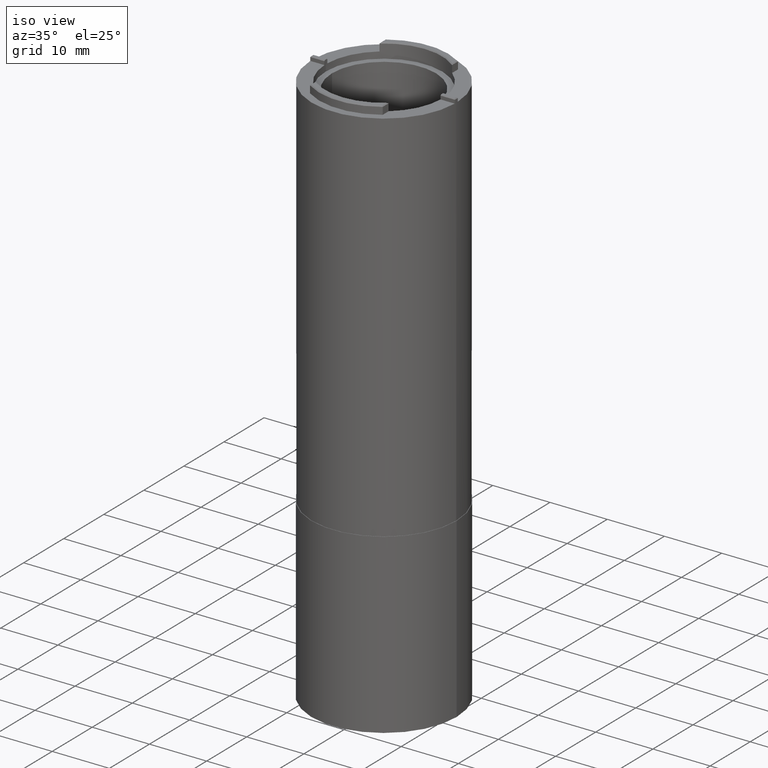
[diagram: clean part render]
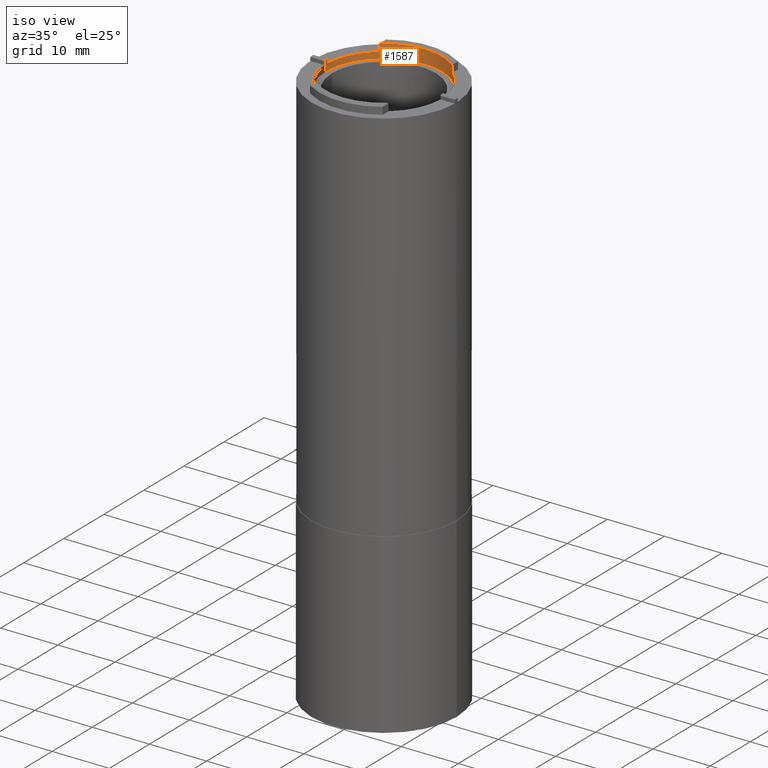
[diagram: same view with one face highlighted and labeled with its STEP entity id]
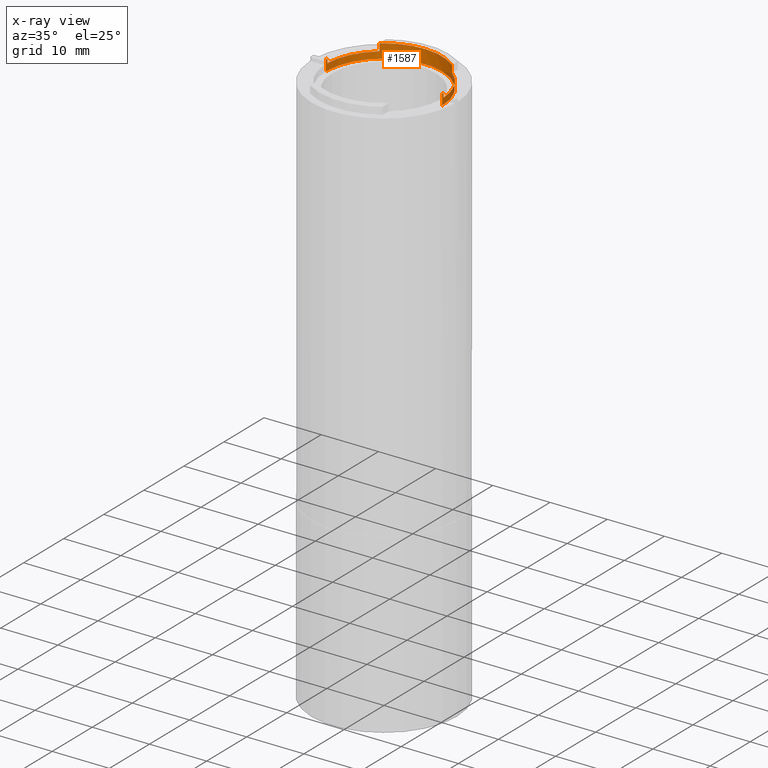
[diagram: x-ray of the same camera — body ghosted, the highlighted face saturated]
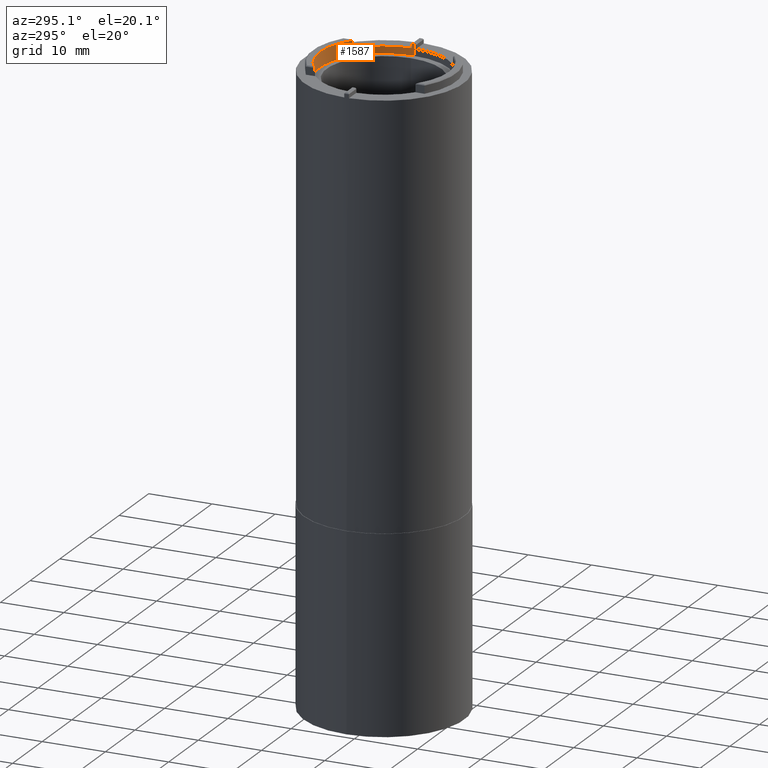
[diagram: same view with one face highlighted and labeled with its STEP entity id]
A machine part, iso view. The second image highlights one B-rep face of the part: STEP entity #1587.
The next image is the same camera in x-ray: the body ghosted, the highlighted face saturated — about 0% of this face is hidden behind the body in this view.
A second angle (auxiliary view) of the same face is appended — the face is thin or edge-on in the first view.
In plain terms, the highlighted cylindrical surface (partial cylindrical patch) has radius 10.16 mm, axis along (-0, -0, 1).
Its self-contained STEP definition (entity closure, byte-faithful):
#35 = EDGE_CURVE ( 'NONE', #1388, #1761, #1072, .T. ) ;
#71 = FACE_OUTER_BOUND ( 'NONE', #1411, .T. ) ;
#78 = DIRECTION ( 'NONE',  ( 1.000000000000000000, 0.000000000000000000, 0.000000000000000000 ) ) ;
#83 = CARTESIAN_POINT ( 'NONE',  ( 0.000000000000000000, 0.000000000000000000, 98.27999999999998693 ) ) ;
#107 = CARTESIAN_POINT ( 'NONE',  ( -10.16000000000000014, 1.244241147933710864E-15, 95.89000000000000057 ) ) ;
#133 = DIRECTION ( 'NONE',  ( 0.000000000000000000, 0.000000000000000000, 1.000000000000000000 ) ) ;
#151 = AXIS2_PLACEMENT_3D ( 'NONE', #1685, #1831, #1662 ) ;
#170 = DIRECTION ( 'NONE',  ( -0.000000000000000000, -0.000000000000000000, 1.000000000000000000 ) ) ;
#186 = ORIENTED_EDGE ( 'NONE', *, *, #1321, .T. ) ;
#190 = CARTESIAN_POINT ( 'NONE',  ( 0.000000000000000000, 0.000000000000000000, 95.89000000000000057 ) ) ;
#201 = EDGE_CURVE ( 'NONE', #332, #306, #861, .T. ) ;
#227 = DIRECTION ( 'NONE',  ( 0.000000000000000000, 0.000000000000000000, 1.000000000000000000 ) ) ;
#265 = VECTOR ( 'NONE', #1609, 1000.000000000000000 ) ;
#273 = CARTESIAN_POINT ( 'NONE',  ( -10.15508222736988486, 0.3200111808489145004, 97.68998881915108257 ) ) ;
#286 = CARTESIAN_POINT ( 'NONE',  ( 10.15508222736988486, 0.3200111808489202181, 97.68998881915108257 ) ) ;
#303 = CARTESIAN_POINT ( 'NONE',  ( 0.000000000000000000, 0.000000000000000000, 97.79000000000000625 ) ) ;
#306 = VERTEX_POINT ( 'NONE', #1478 ) ;
#316 = AXIS2_PLACEMENT_3D ( 'NONE', #369, #1259, #524 ) ;
#327 = AXIS2_PLACEMENT_3D ( 'NONE', #1055, #1788, #769 ) ;
#332 = VERTEX_POINT ( 'NONE', #1777 ) ;
#342 = CIRCLE ( 'NONE', #327, 10.16000000000000014 ) ;
#369 = CARTESIAN_POINT ( 'NONE',  ( 0.000000000000000000, 0.000000000000000000, 97.79000000000000625 ) ) ;
#378 = DIRECTION ( 'NONE',  ( -0.000000000000000000, -0.000000000000000000, 1.000000000000000000 ) ) ;
#426 = DIRECTION ( 'NONE',  ( 0.000000000000000000, 0.000000000000000000, 1.000000000000000000 ) ) ;
#434 = CARTESIAN_POINT ( 'NONE',  ( -6.349999999999996092, 7.931147457965970204, 97.03000000000000114 ) ) ;
#446 = VERTEX_POINT ( 'NONE', #1248 ) ;
#449 = ORIENTED_EDGE ( 'NONE', *, *, #1664, .F. ) ;
#450 = DIRECTION ( 'NONE',  ( 1.000000000000000000, 0.000000000000000000, 0.000000000000000000 ) ) ;
#452 = CARTESIAN_POINT ( 'NONE',  ( -10.16000000000000014, 1.244241147933710864E-15, 95.89000000000000057 ) ) ;
#519 = CARTESIAN_POINT ( 'NONE',  ( 10.16000000000000014, 0.000000000000000000, 95.89000000000000057 ) ) ;
#524 = DIRECTION ( 'NONE',  ( -1.000000000000000000, 0.000000000000000000, 0.000000000000000000 ) ) ;
#578 = CARTESIAN_POINT ( 'NONE',  ( 10.15761783096804649, 0.2200000000000095768, 97.79000000000000625 ) ) ;
#588 = CARTESIAN_POINT ( 'NONE',  ( 0.000000000000000000, 0.000000000000000000, 97.03000000000000114 ) ) ;
#589 = ORIENTED_EDGE ( 'NONE', *, *, #1688, .T. ) ;
#615 = LINE ( 'NONE', #1059, #1283 ) ;
#629 = ORIENTED_EDGE ( 'NONE', *, *, #779, .T. ) ;
#644 = CARTESIAN_POINT ( 'NONE',  ( 10.15326056003685906, 0.3699999999999999956, 97.03000000000000114 ) ) ;
#665 = EDGE_CURVE ( 'NONE', #882, #796, #959, .T. ) ;
#711 = DIRECTION ( 'NONE',  ( -0.000000000000000000, -0.000000000000000000, 1.000000000000000000 ) ) ;
#728 = EDGE_CURVE ( 'NONE', #1369, #829, #1398, .T. ) ;
#760 = LINE ( 'NONE', #1895, #1632 ) ;
#769 = DIRECTION ( 'NONE',  ( 1.000000000000000000, 0.000000000000000000, 0.000000000000000000 ) ) ;
#779 = EDGE_CURVE ( 'NONE', #1729, #1045, #1871, .T. ) ;
#796 = VERTEX_POINT ( 'NONE', #1456 ) ;
#799 = EDGE_CURVE ( 'NONE', #882, #306, #1419, .T. ) ;
#813 = ORIENTED_EDGE ( 'NONE', *, *, #799, .T. ) ;
#829 = VERTEX_POINT ( 'NONE', #1323 ) ;
#839 = AXIS2_PLACEMENT_3D ( 'NONE', #303, #133, #450 ) ;
#849 = DIRECTION ( 'NONE',  ( -0.000000000000000000, -0.000000000000000000, 1.000000000000000000 ) ) ;
#861 = LINE ( 'NONE', #1484, #1425 ) ;
#882 = VERTEX_POINT ( 'NONE', #434 ) ;
#953 = CARTESIAN_POINT ( 'NONE',  ( 10.15326056003685906, 0.3699999999999999956, 97.64000000000000057 ) ) ;
#954 = AXIS2_PLACEMENT_3D ( 'NONE', #83, #227, #78 ) ;
#959 = LINE ( 'NONE', #1578, #976 ) ;
#962 = DIRECTION ( 'NONE',  ( 1.000000000000000000, 0.000000000000000000, 0.000000000000000000 ) ) ;
#968 = ORIENTED_EDGE ( 'NONE', *, *, #1067, .T. ) ;
#976 = VECTOR ( 'NONE', #711, 1000.000000000000000 ) ;
#979 = VERTEX_POINT ( 'NONE', #1521 ) ;
#993 = CARTESIAN_POINT ( 'NONE',  ( -10.15653467741868354, 0.2700102718486978581, 97.73998972815131481 ) ) ;
#1017 = CARTESIAN_POINT ( 'NONE',  ( 10.15653467741868354, 0.2700102718487073505, 97.73998972815131481 ) ) ;
#1032 = VERTEX_POINT ( 'NONE', #644 ) ;
#1045 = VERTEX_POINT ( 'NONE', #953 ) ;
#1055 = CARTESIAN_POINT ( 'NONE',  ( 0.000000000000000000, 0.000000000000000000, 97.03000000000000114 ) ) ;
#1059 = CARTESIAN_POINT ( 'NONE',  ( 10.16000000000000014, 0.000000000000000000, 95.89000000000000057 ) ) ;
#1067 = EDGE_CURVE ( 'NONE', #1369, #796, #1415, .T. ) ;
#1072 = LINE ( 'NONE', #107, #1430 ) ;
#1089 = CYLINDRICAL_SURFACE ( 'NONE', #1477, 10.16000000000000014 ) ;
#1114 =( BOUNDED_CURVE ( )  B_SPLINE_CURVE ( 3, ( #1126, #273, #993, #1304 ),
 .UNSPECIFIED., .F., .T. ) 
 B_SPLINE_CURVE_WITH_KNOTS ( ( 4, 4 ),
 ( 4.675963603170106175, 4.690733744582901821 ),
 .UNSPECIFIED. ) 
 CURVE ( )  GEOMETRIC_REPRESENTATION_ITEM ( )  RATIONAL_B_SPLINE_CURVE ( ( 1.000000000000000000, 0.9999818203261795491, 0.9999818203261795491, 1.000000000000000000 ) ) 
 REPRESENTATION_ITEM ( '' )  );
#1126 = CARTESIAN_POINT ( 'NONE',  ( -10.15326056003685906, 0.3699999999999999956, 97.64000000000000057 ) ) ;
#1157 = ORIENTED_EDGE ( 'NONE', *, *, #1471, .F. ) ;
#1181 = CARTESIAN_POINT ( 'NONE',  ( 10.15761783096804649, 0.2200000000000095768, 97.79000000000000625 ) ) ;
#1185 = CARTESIAN_POINT ( 'NONE',  ( 6.349999999999996092, 7.931147457965971981, 98.28000000000000114 ) ) ;
#1204 = ORIENTED_EDGE ( 'NONE', *, *, #665, .F. ) ;
#1248 = CARTESIAN_POINT ( 'NONE',  ( -10.15761783096804827, 0.2200000000000026379, 97.79000000000000625 ) ) ;
#1259 = DIRECTION ( 'NONE',  ( -0.000000000000000000, -0.000000000000000000, -1.000000000000000000 ) ) ;
#1283 = VECTOR ( 'NONE', #170, 1000.000000000000000 ) ;
#1304 = CARTESIAN_POINT ( 'NONE',  ( -10.15761783096804827, 0.2200000000000026379, 97.79000000000000625 ) ) ;
#1321 = EDGE_CURVE ( 'NONE', #1032, #829, #342, .T. ) ;
#1323 = CARTESIAN_POINT ( 'NONE',  ( 6.349999999999996092, 7.931147457965970204, 97.03000000000000114 ) ) ;
#1361 = EDGE_CURVE ( 'NONE', #1565, #979, #615, .T. ) ;
#1366 = ORIENTED_EDGE ( 'NONE', *, *, #35, .F. ) ;
#1369 = VERTEX_POINT ( 'NONE', #1185 ) ;
#1376 = ORIENTED_EDGE ( 'NONE', *, *, #1555, .F. ) ;
#1388 = VERTEX_POINT ( 'NONE', #452 ) ;
#1398 = LINE ( 'NONE', #1467, #265 ) ;
#1411 = EDGE_LOOP ( 'NONE', ( #1366, #1157, #1463, #1712, #629, #449, #186, #1530, #968, #1204, #813, #1914, #589, #1376 ) ) ;
#1415 = CIRCLE ( 'NONE', #954, 10.16000000000000014 ) ;
#1419 = CIRCLE ( 'NONE', #1591, 10.16000000000000014 ) ;
#1425 = VECTOR ( 'NONE', #1636, 1000.000000000000000 ) ;
#1430 = VECTOR ( 'NONE', #1859, 1000.000000000000000 ) ;
#1456 = CARTESIAN_POINT ( 'NONE',  ( -6.349999999999996092, 7.931147457965971981, 98.28000000000000114 ) ) ;
#1463 = ORIENTED_EDGE ( 'NONE', *, *, #1361, .T. ) ;
#1467 = CARTESIAN_POINT ( 'NONE',  ( 6.349999999999996092, 7.931147457965970204, 95.89000000000000057 ) ) ;
#1471 = EDGE_CURVE ( 'NONE', #1565, #1388, #1537, .T. ) ;
#1474 = DIRECTION ( 'NONE',  ( 1.000000000000000000, 0.000000000000000000, 0.000000000000000000 ) ) ;
#1477 = AXIS2_PLACEMENT_3D ( 'NONE', #190, #378, #962 ) ;
#1478 = CARTESIAN_POINT ( 'NONE',  ( -10.15326056003685906, 0.3699999999999999956, 97.03000000000000114 ) ) ;
#1484 = CARTESIAN_POINT ( 'NONE',  ( -10.15326056003685906, 0.3699999999999999956, 95.89000000000000057 ) ) ;
#1521 = CARTESIAN_POINT ( 'NONE',  ( 10.16000000000000014, 0.000000000000000000, 97.79000000000000625 ) ) ;
#1530 = ORIENTED_EDGE ( 'NONE', *, *, #728, .F. ) ;
#1537 = CIRCLE ( 'NONE', #151, 10.16000000000000014 ) ;
#1555 = EDGE_CURVE ( 'NONE', #1761, #446, #1923, .T. ) ;
#1565 = VERTEX_POINT ( 'NONE', #519 ) ;
#1578 = CARTESIAN_POINT ( 'NONE',  ( -6.349999999999996092, 7.931147457965970204, 95.89000000000000057 ) ) ;
#1587 = ADVANCED_FACE ( 'NONE', ( #71 ), #1089, .F. ) ;
#1591 = AXIS2_PLACEMENT_3D ( 'NONE', #588, #426, #1474 ) ;
#1609 = DIRECTION ( 'NONE',  ( 0.000000000000000000, 0.000000000000000000, -1.000000000000000000 ) ) ;
#1627 = CARTESIAN_POINT ( 'NONE',  ( -10.16000000000000014, 1.244241147933710864E-15, 97.79000000000000625 ) ) ;
#1632 = VECTOR ( 'NONE', #849, 1000.000000000000000 ) ;
#1636 = DIRECTION ( 'NONE',  ( 0.000000000000000000, 0.000000000000000000, -1.000000000000000000 ) ) ;
#1662 = DIRECTION ( 'NONE',  ( 1.000000000000000000, 0.000000000000000000, 0.000000000000000000 ) ) ;
#1664 = EDGE_CURVE ( 'NONE', #1032, #1045, #760, .T. ) ;
#1685 = CARTESIAN_POINT ( 'NONE',  ( 0.000000000000000000, 0.000000000000000000, 95.89000000000000057 ) ) ;
#1688 = EDGE_CURVE ( 'NONE', #332, #446, #1114, .T. ) ;
#1712 = ORIENTED_EDGE ( 'NONE', *, *, #1819, .T. ) ;
#1729 = VERTEX_POINT ( 'NONE', #1181 ) ;
#1761 = VERTEX_POINT ( 'NONE', #1627 ) ;
#1777 = CARTESIAN_POINT ( 'NONE',  ( -10.15326056003685906, 0.3699999999999999956, 97.64000000000000057 ) ) ;
#1788 = DIRECTION ( 'NONE',  ( 0.000000000000000000, 0.000000000000000000, 1.000000000000000000 ) ) ;
#1819 = EDGE_CURVE ( 'NONE', #979, #1729, #1876, .T. ) ;
#1831 = DIRECTION ( 'NONE',  ( 0.000000000000000000, 0.000000000000000000, 1.000000000000000000 ) ) ;
#1859 = DIRECTION ( 'NONE',  ( -0.000000000000000000, -0.000000000000000000, 1.000000000000000000 ) ) ;
#1871 =( BOUNDED_CURVE ( )  B_SPLINE_CURVE ( 3, ( #578, #1017, #286, #1888 ),
 .UNSPECIFIED., .F., .F. ) 
 B_SPLINE_CURVE_WITH_KNOTS ( ( 4, 4 ),
 ( 1.592451562596685966, 1.607221704009480501 ),
 .UNSPECIFIED. ) 
 CURVE ( )  GEOMETRIC_REPRESENTATION_ITEM ( )  RATIONAL_B_SPLINE_CURVE ( ( 1.000000000000000000, 0.9999818203261795491, 0.9999818203261795491, 1.000000000000000000 ) ) 
 REPRESENTATION_ITEM ( '' )  );
#1876 = CIRCLE ( 'NONE', #839, 10.16000000000000014 ) ;
#1888 = CARTESIAN_POINT ( 'NONE',  ( 10.15326056003685906, 0.3699999999999999956, 97.64000000000000057 ) ) ;
#1895 = CARTESIAN_POINT ( 'NONE',  ( 10.15326056003685906, 0.3699999999999999956, 95.89000000000000057 ) ) ;
#1914 = ORIENTED_EDGE ( 'NONE', *, *, #201, .F. ) ;
#1923 = CIRCLE ( 'NONE', #316, 10.16000000000000014 ) ;